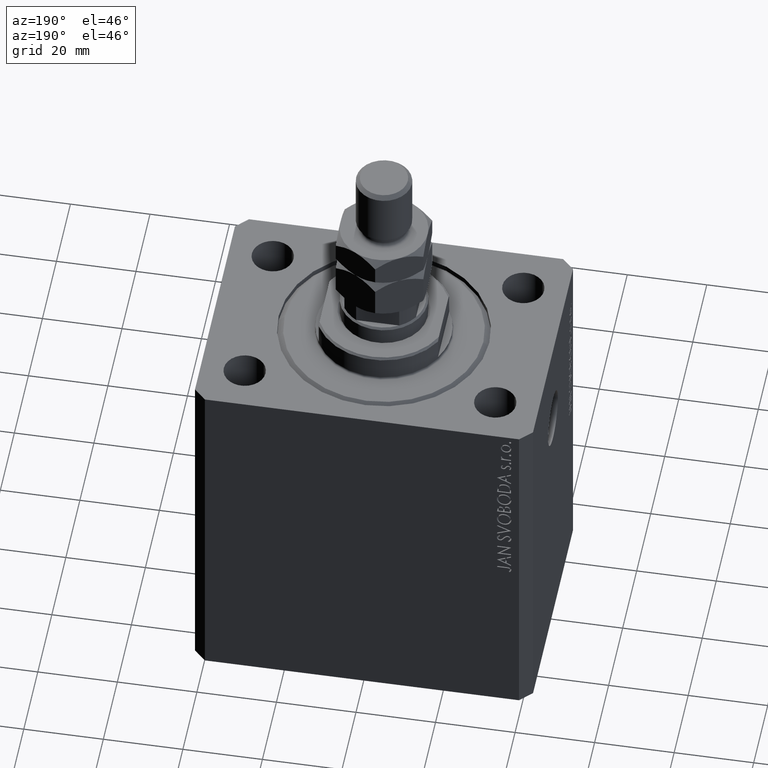
[diagram: clean part render]
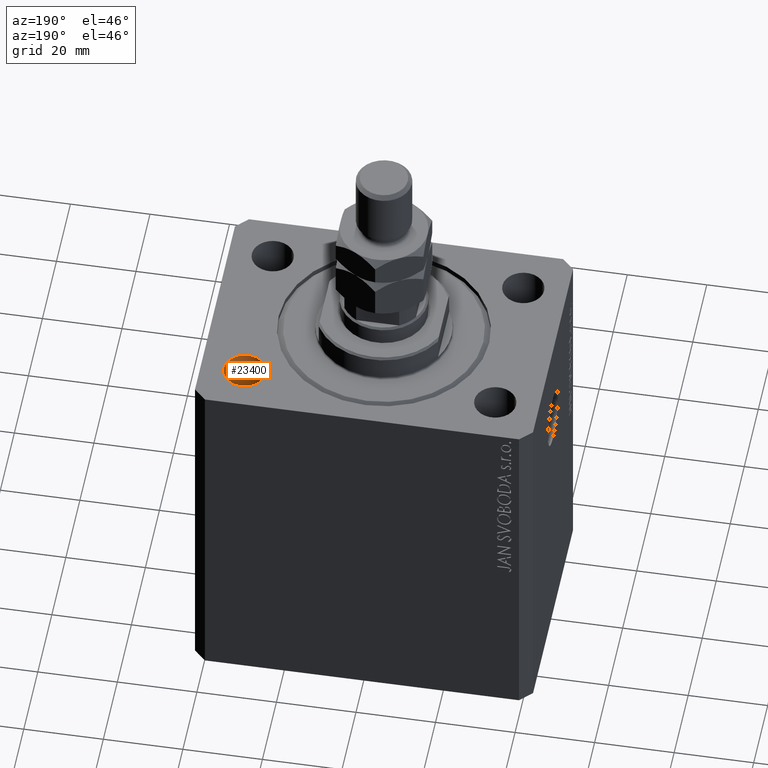
[diagram: same view with one face highlighted and labeled with its STEP entity id]
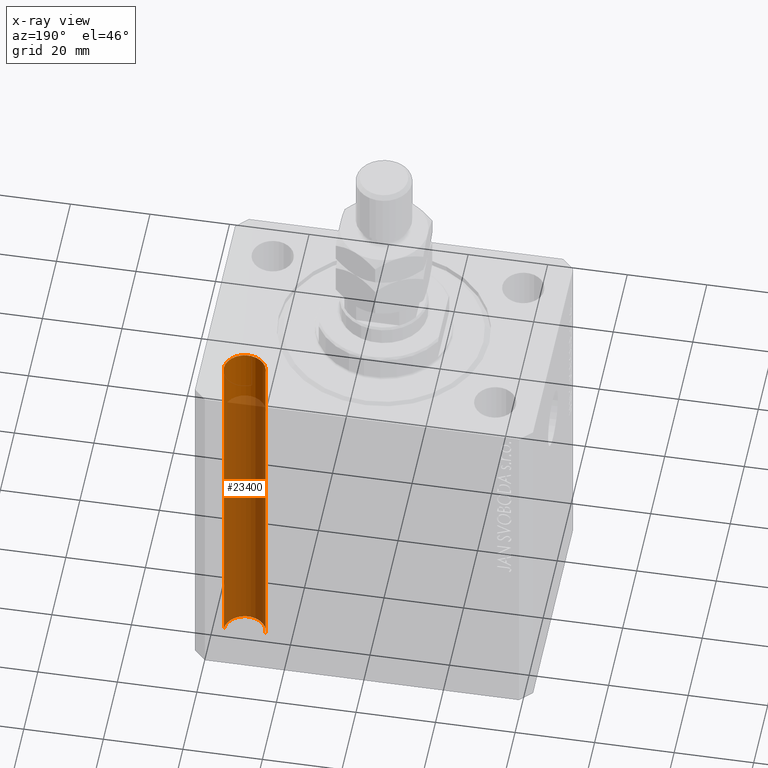
[diagram: x-ray of the same camera — body ghosted, the highlighted face saturated]
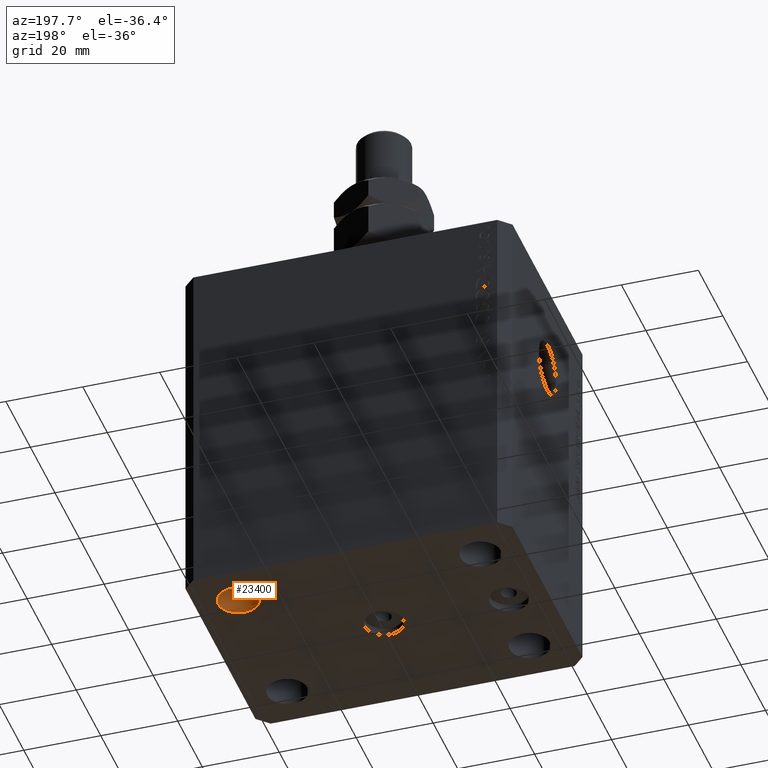
[diagram: same view with one face highlighted and labeled with its STEP entity id]
A machine part, auxiliary view. The second image highlights one B-rep face of the part: STEP entity #23400.
The next image is the same camera in x-ray: the body ghosted, the highlighted face saturated — about 80% of this face is hidden behind the body in this view.
A second angle (auxiliary view) of the same face is appended — the face is thin or edge-on in the first view.
In plain terms, the highlighted cylindrical surface (edge-blend (fillet) strip) has radius 5.25 mm, axis along (0, 0, 1).
Its self-contained STEP definition (entity closure, byte-faithful):
#1255 = VECTOR ( 'NONE', #36270, 1000.000000000000000 ) ;
#5135 = DIRECTION ( 'NONE',  ( 1.000000000000000000, 0.000000000000000000, 0.000000000000000000 ) ) ;
#5367 = DIRECTION ( 'NONE',  ( 0.000000000000000000, 0.000000000000000000, 1.000000000000000000 ) ) ;
#6162 = DIRECTION ( 'NONE',  ( -0.000000000000000000, -0.000000000000000000, 1.000000000000000000 ) ) ;
#7588 = CARTESIAN_POINT ( 'NONE',  ( 36.75000000000000000, 19.99999999999999289, 0.000000000000000000 ) ) ;
#8433 = DIRECTION ( 'NONE',  ( -0.000000000000000000, -0.000000000000000000, -1.000000000000000000 ) ) ;
#8942 = CARTESIAN_POINT ( 'NONE',  ( 36.75000000000000000, 19.99999999999999289, -93.00000000000000000 ) ) ;
#9093 = CARTESIAN_POINT ( 'NONE',  ( 31.50000000000000000, 19.99999999999999289, -107.8492424049175042 ) ) ;
#9796 = AXIS2_PLACEMENT_3D ( 'NONE', #33316, #5367, #5135 ) ;
#10262 = AXIS2_PLACEMENT_3D ( 'NONE', #9093, #20027, #44020 ) ;
#14345 = VERTEX_POINT ( 'NONE', #8942 ) ;
#14407 = CARTESIAN_POINT ( 'NONE',  ( 36.75000000000000000, 19.99999999999999289, -107.8492424049175042 ) ) ;
#14866 = LINE ( 'NONE', #14407, #1255 ) ;
#15268 = EDGE_CURVE ( 'NONE', #14345, #22875, #18543, .T. ) ;
#15501 = CARTESIAN_POINT ( 'NONE',  ( 26.25000000000000355, 19.99999999999999289, -93.00000000000000000 ) ) ;
#16125 = ORIENTED_EDGE ( 'NONE', *, *, #17497, .F. ) ;
#16141 = ORIENTED_EDGE ( 'NONE', *, *, #38352, .T. ) ;
#16870 = VERTEX_POINT ( 'NONE', #34827 ) ;
#17497 = EDGE_CURVE ( 'NONE', #14345, #41344, #14866, .T. ) ;
#18543 = CIRCLE ( 'NONE', #28202, 5.249999999999997335 ) ;
#20027 = DIRECTION ( 'NONE',  ( -0.000000000000000000, -0.000000000000000000, 1.000000000000000000 ) ) ;
#22875 = VERTEX_POINT ( 'NONE', #15501 ) ;
#23400 = ADVANCED_FACE ( 'NONE', ( #40982 ), #30502, .F. ) ;
#23852 = CARTESIAN_POINT ( 'NONE',  ( 26.25000000000000355, 19.99999999999999289, -107.8492424049175042 ) ) ;
#24083 = LINE ( 'NONE', #23852, #35583 ) ;
#26636 = EDGE_CURVE ( 'NONE', #22875, #16870, #24083, .T. ) ;
#28202 = AXIS2_PLACEMENT_3D ( 'NONE', #37056, #8433, #44496 ) ;
#30502 = CYLINDRICAL_SURFACE ( 'NONE', #10262, 5.249999999999997335 ) ;
#33316 = CARTESIAN_POINT ( 'NONE',  ( 31.50000000000000000, 19.99999999999999289, 0.000000000000000000 ) ) ;
#34827 = CARTESIAN_POINT ( 'NONE',  ( 26.25000000000000355, 19.99999999999999289, 0.000000000000000000 ) ) ;
#35583 = VECTOR ( 'NONE', #6162, 1000.000000000000000 ) ;
#36270 = DIRECTION ( 'NONE',  ( -0.000000000000000000, -0.000000000000000000, 1.000000000000000000 ) ) ;
#37056 = CARTESIAN_POINT ( 'NONE',  ( 31.50000000000000000, 19.99999999999999289, -93.00000000000000000 ) ) ;
#38352 = EDGE_CURVE ( 'NONE', #16870, #41344, #41034, .T. ) ;
#39373 = ORIENTED_EDGE ( 'NONE', *, *, #26636, .T. ) ;
#40982 = FACE_OUTER_BOUND ( 'NONE', #41635, .T. ) ;
#41034 = CIRCLE ( 'NONE', #9796, 5.249999999999997335 ) ;
#41344 = VERTEX_POINT ( 'NONE', #7588 ) ;
#41635 = EDGE_LOOP ( 'NONE', ( #42375, #39373, #16141, #16125 ) ) ;
#42375 = ORIENTED_EDGE ( 'NONE', *, *, #15268, .T. ) ;
#44020 = DIRECTION ( 'NONE',  ( 1.000000000000000000, 0.000000000000000000, 0.000000000000000000 ) ) ;
#44496 = DIRECTION ( 'NONE',  ( 1.000000000000000000, 0.000000000000000000, 0.000000000000000000 ) ) ;